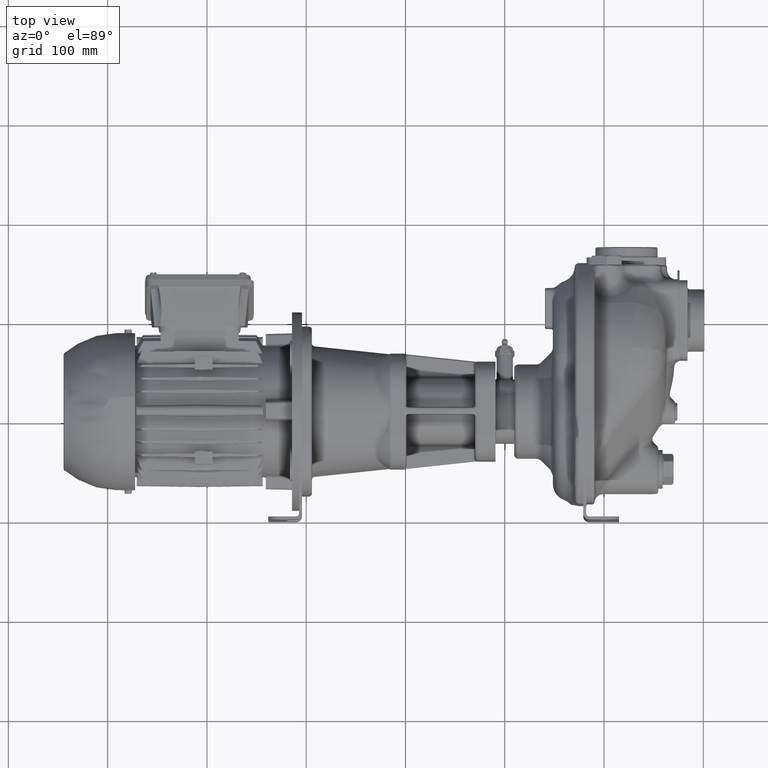
[diagram: clean part render]
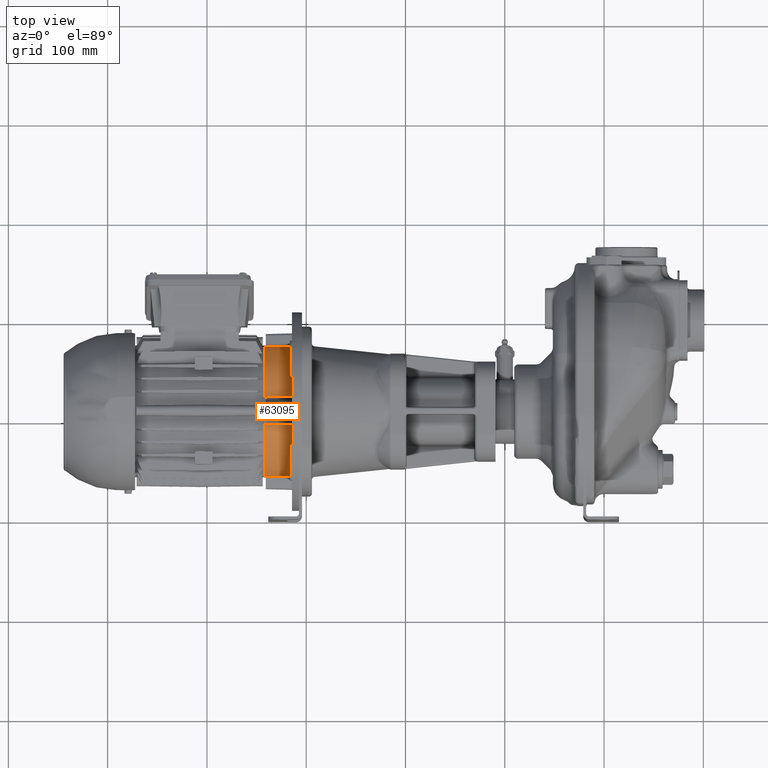
[diagram: same view with one face highlighted and labeled with its STEP entity id]
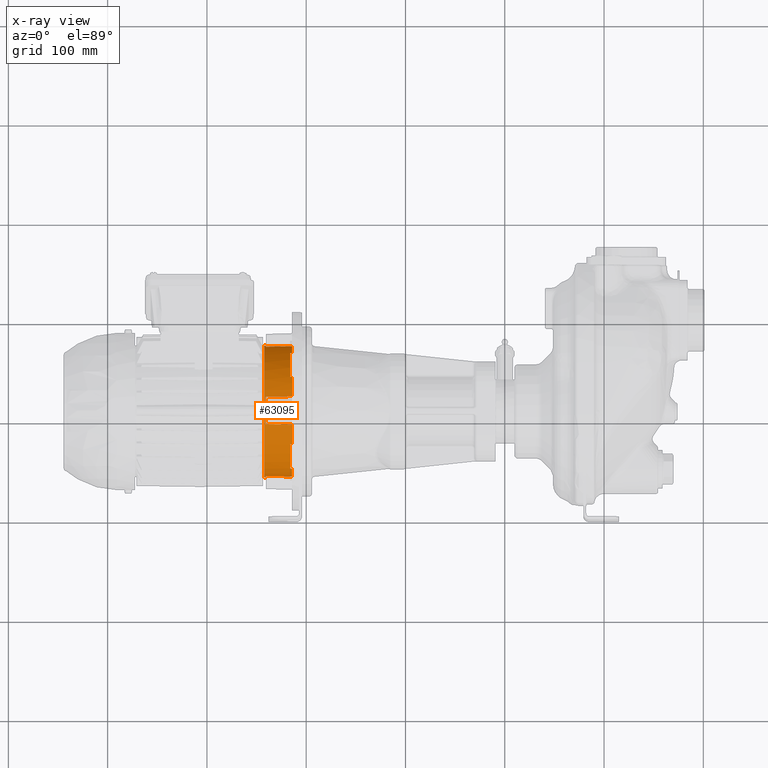
[diagram: x-ray of the same camera — body ghosted, the highlighted face saturated]
A machine part, top view. The second image highlights one B-rep face of the part: STEP entity #63095.
The next image is the same camera in x-ray: the body ghosted, the highlighted face saturated — about 0% of this face is hidden behind the body in this view.
In plain terms, the highlighted conical surface has half-angle 1.5 deg.
Its self-contained STEP definition (entity closure, byte-faithful):
#13512=CARTESIAN_POINT('',(-3.143E2,1.1E2,0.E0));
#13513=DIRECTION('',(1.E0,0.E0,0.E0));
#13514=DIRECTION('',(0.E0,-8.637521696594E-1,5.039168477127E-1));
#13515=AXIS2_PLACEMENT_3D('',#13512,#13513,#13514);
#13525=CARTESIAN_POINT('',(-3.143E2,1.1E2,0.E0));
#13526=DIRECTION('',(1.E0,0.E0,0.E0));
#13527=DIRECTION('',(0.E0,-2.120642378916E-1,9.772557285621E-1));
#13528=AXIS2_PLACEMENT_3D('',#13525,#13526,#13527);
#13542=CARTESIAN_POINT('',(-3.143E2,1.1E2,0.E0));
#13543=DIRECTION('',(1.E0,0.E0,0.E0));
#13544=DIRECTION('',(0.E0,5.039168477127E-1,8.637521696594E-1));
#13545=AXIS2_PLACEMENT_3D('',#13542,#13543,#13544);
#13560=CARTESIAN_POINT('',(-3.143E2,1.1E2,0.E0));
#13561=DIRECTION('',(1.E0,0.E0,0.E0));
#13562=DIRECTION('',(0.E0,9.772557285621E-1,2.120642378916E-1));
#13563=AXIS2_PLACEMENT_3D('',#13560,#13561,#13562);
#13671=DIRECTION('',(-9.996573249756E-1,2.617694830787E-2,0.E0));
#13672=VECTOR('',#13671,1.500514188741E0);
#13673=CARTESIAN_POINT('',(-3.408E2,4.346072111765E1,1.508847267228E-14));
#13674=LINE('',#13673,#13672);
#13731=CARTESIAN_POINT('',(-3.423E2,1.1E2,0.E0));
#13732=DIRECTION('',(1.E0,0.E0,0.E0));
#13733=DIRECTION('',(0.E0,1.E0,0.E0));
#13734=AXIS2_PLACEMENT_3D('',#13731,#13732,#13733);
#13761=DIRECTION('',(-9.996573249756E-1,-2.617694830788E-2,0.E0));
#13762=VECTOR('',#13761,1.500514188735E0);
#13763=CARTESIAN_POINT('',(-3.408E2,1.765392788824E2,-1.801897077903E-14));
#13764=LINE('',#13763,#13762);
#13765=CARTESIAN_POINT('',(-3.143000039996E2,1.757041858692E2,
1.425779117527E1));
#13766=CARTESIAN_POINT('',(-3.172649177616E2,1.756377066287E2,
1.419770258732E1));
#13767=CARTESIAN_POINT('',(-3.231810992922E2,1.755052234898E2,
1.407786147469E1));
#13768=CARTESIAN_POINT('',(-3.320139568616E2,1.753069737848E2,
1.389888579990E1));
#13769=CARTESIAN_POINT('',(-3.378758201771E2,1.751751041203E2,
1.378007584766E1));
#13770=CARTESIAN_POINT('',(-3.408000040005E2,1.751094055468E2,
1.372083722538E1));
#13772=CARTESIAN_POINT('',(-3.163E2,1.680426651948E2,3.382770268217E1));
#13773=CARTESIAN_POINT('',(-3.160779378837E2,1.680460145614E2,
3.383350395534E1));
#13774=CARTESIAN_POINT('',(-3.156337069152E2,1.680527146201E2,
3.384510879737E1));
#13775=CARTESIAN_POINT('',(-3.149670403707E2,1.680627686823E2,
3.386252294387E1));
#13776=CARTESIAN_POINT('',(-3.145223823817E2,1.680694740431E2,
3.387413696948E1));
#13777=CARTESIAN_POINT('',(-3.143E2,1.680728273863E2,3.387994513034E1));
#13779=CARTESIAN_POINT('',(-3.143E2,1.438799451303E2,5.807282738631E1));
#13780=CARTESIAN_POINT('',(-3.145223823817E2,1.438741369695E2,
5.806947404307E1));
#13781=CARTESIAN_POINT('',(-3.149670403708E2,1.438625229439E2,
5.806276868225E1));
#13782=CARTESIAN_POINT('',(-3.156337069152E2,1.438451087974E2,
5.805271462008E1));
#13783=CARTESIAN_POINT('',(-3.160779378837E2,1.438335039553E2,
5.804601456142E1));
#13784=CARTESIAN_POINT('',(-3.163E2,1.438277026822E2,5.804266519479E1));
#13786=CARTESIAN_POINT('',(-3.408000039757E2,1.237208372268E2,
6.510940555349E1));
#13787=CARTESIAN_POINT('',(-3.378758201246E2,1.237800758496E2,
6.517510412765E1));
#13788=CARTESIAN_POINT('',(-3.320139567051E2,1.238988858025E2,
6.530697378465E1));
#13789=CARTESIAN_POINT('',(-3.231810993357E2,1.240778614743E2,
6.550522349237E1));
#13790=CARTESIAN_POINT('',(-3.172649177660E2,1.241977025864E2,
6.563770662266E1));
#13791=CARTESIAN_POINT('',(-3.143000040238E2,1.242577911739E2,
6.570418586274E1));
#13793=CARTESIAN_POINT('',(-3.143000039996E2,9.574220882473E1,
6.570418586921E1));
#13794=CARTESIAN_POINT('',(-3.172649177620E2,9.580229741269E1,
6.563770662867E1));
#13795=CARTESIAN_POINT('',(-3.231810992932E2,9.592213852533E1,
6.550522348973E1));
#13796=CARTESIAN_POINT('',(-3.320139568625E2,9.610111420012E1,
6.530697378478E1));
#13797=CARTESIAN_POINT('',(-3.378758201775E2,9.621992415234E1,
6.517510412031E1));
#13798=CARTESIAN_POINT('',(-3.408000040005E2,9.627916277462E1,
6.510940554677E1));
#13800=CARTESIAN_POINT('',(-3.163E2,7.617229731782E1,5.804266519479E1));
#13801=CARTESIAN_POINT('',(-3.160779378837E2,7.616649604466E1,
5.804601456142E1));
#13802=CARTESIAN_POINT('',(-3.156337069152E2,7.615489120263E1,
5.805271462009E1));
#13803=CARTESIAN_POINT('',(-3.149670403707E2,7.613747705613E1,
5.806276868225E1));
#13804=CARTESIAN_POINT('',(-3.145223823817E2,7.612586303052E1,
5.806947404307E1));
#13805=CARTESIAN_POINT('',(-3.143E2,7.612005486966E1,5.807282738631E1));
#13807=CARTESIAN_POINT('',(-3.143E2,5.192717261369E1,3.387994513034E1));
#13808=CARTESIAN_POINT('',(-3.145223823817E2,5.193052595693E1,
3.387413696948E1));
#13809=CARTESIAN_POINT('',(-3.149670403708E2,5.193723131775E1,
3.386252294387E1));
#13810=CARTESIAN_POINT('',(-3.156337069152E2,5.194728537991E1,
3.384510879737E1));
#13811=CARTESIAN_POINT('',(-3.160779378837E2,5.195398543858E1,
3.383350395534E1));
#13812=CARTESIAN_POINT('',(-3.163E2,5.195733480521E1,3.382770268217E1));
#13814=CARTESIAN_POINT('',(-3.408000039773E2,4.489059447568E1,
1.372083722061E1));
#13815=CARTESIAN_POINT('',(-3.378758201255E2,4.482489590150E1,
1.378007584347E1));
#13816=CARTESIAN_POINT('',(-3.320139567093E2,4.469302620556E1,
1.389888580451E1));
#13817=CARTESIAN_POINT('',(-3.231810993344E2,4.449477649852E1,
1.407786147636E1));
#13818=CARTESIAN_POINT('',(-3.172649177654E2,4.436229340513E1,
1.419770258033E1));
#13819=CARTESIAN_POINT('',(-3.143000040238E2,4.429581416506E1,
1.425779116787E1));
#13825=CARTESIAN_POINT('',(-3.408E2,1.1E2,0.E0));
#13826=DIRECTION('',(1.E0,0.E0,0.E0));
#13827=DIRECTION('',(0.E0,1.E0,0.E0));
#13828=AXIS2_PLACEMENT_3D('',#13825,#13826,#13827);
#14031=CARTESIAN_POINT('',(-3.163E2,1.1E2,0.E0));
#14032=DIRECTION('',(1.E0,0.E0,0.E0));
#14033=DIRECTION('',(0.E0,8.639765506433E-1,5.035320445994E-1));
#14034=AXIS2_PLACEMENT_3D('',#14031,#14032,#14033);
#14139=CARTESIAN_POINT('',(-3.408E2,1.1E2,0.E0));
#14140=DIRECTION('',(1.E0,0.E0,0.E0));
#14141=DIRECTION('',(0.E0,2.062061055991E-1,9.785085804497E-1));
#14142=AXIS2_PLACEMENT_3D('',#14139,#14140,#14141);
#14300=CARTESIAN_POINT('',(-3.163E2,1.1E2,0.E0));
#14301=DIRECTION('',(1.E0,0.E0,0.E0));
#14302=DIRECTION('',(0.E0,-5.035320445994E-1,8.639765506433E-1));
#14303=AXIS2_PLACEMENT_3D('',#14300,#14301,#14302);
#14400=CARTESIAN_POINT('',(-3.408E2,1.1E2,0.E0));
#14401=DIRECTION('',(1.E0,0.E0,0.E0));
#14402=DIRECTION('',(0.E0,-9.785085804497E-1,2.062061055991E-1));
#14403=AXIS2_PLACEMENT_3D('',#14400,#14401,#14402);
#14535=CARTESIAN_POINT('',(-3.423E2,1.1E2,0.E0));
#14536=DIRECTION('',(-1.E0,0.E0,0.E0));
#14537=DIRECTION('',(0.E0,-1.E0,0.E0));
#14538=AXIS2_PLACEMENT_3D('',#14535,#14536,#14537);
#41054=CARTESIAN_POINT('',(-3.163E2,1.438277026822E2,5.804266519479E1));
#41055=VERTEX_POINT('',#41054);
#41087=VERTEX_POINT('',#13814);
#41088=VERTEX_POINT('',#13819);
#41089=CARTESIAN_POINT('',(-3.408E2,4.346072111765E1,0.E0));
#41090=VERTEX_POINT('',#41089);
#41091=CARTESIAN_POINT('',(-3.408E2,1.237208055677E2,6.510925532332E1));
#41092=CARTESIAN_POINT('',(-3.408E2,9.627919443230E1,6.510925532332E1));
#41093=VERTEX_POINT('',#41091);
#41094=VERTEX_POINT('',#41092);
#41095=VERTEX_POINT('',#13793);
#41096=VERTEX_POINT('',#13800);
#41097=VERTEX_POINT('',#13805);
#41098=CARTESIAN_POINT('',(-3.163E2,5.195733480521E1,3.382770268217E1));
#41099=VERTEX_POINT('',#41098);
#41100=VERTEX_POINT('',#13807);
#41101=VERTEX_POINT('',#13772);
#41102=VERTEX_POINT('',#13777);
#41103=VERTEX_POINT('',#13779);
#41104=VERTEX_POINT('',#13791);
#41105=CARTESIAN_POINT('',(-3.408E2,1.765392788824E2,-1.530273298329E-14));
#41106=CARTESIAN_POINT('',(-3.408E2,1.751092553233E2,1.372080556770E1));
#41107=VERTEX_POINT('',#41105);
#41108=VERTEX_POINT('',#41106);
#41109=VERTEX_POINT('',#13765);
#41237=CARTESIAN_POINT('',(-3.423E2,4.35E1,1.276763564036E-14));
#41238=VERTEX_POINT('',#41237);
#41322=CARTESIAN_POINT('',(-3.423E2,1.765E2,-1.421085471520E-14));
#41323=CARTESIAN_POINT('',(-3.423E2,1.589297745015E2,4.503473289842E1));
#41324=VERTEX_POINT('',#41322);
#41325=VERTEX_POINT('',#41323);
#63053=CARTESIAN_POINT('',(-3.283E2,1.1E2,0.E0));
#63054=DIRECTION('',(1.E0,0.E0,0.E0));
#63055=DIRECTION('',(0.E0,-1.E0,0.E0));
#63056=AXIS2_PLACEMENT_3D('',#63053,#63054,#63055);
#63057=CONICAL_SURFACE('',#63056,6.686660290197E1,1.5E0);
#63058=ORIENTED_EDGE('',*,*,#63039,.F.);
#63059=ORIENTED_EDGE('',*,*,#63029,.F.);
#63061=ORIENTED_EDGE('',*,*,#63060,.T.);
#63063=ORIENTED_EDGE('',*,*,#63062,.F.);
#63064=ORIENTED_EDGE('',*,*,#62927,.T.);
#63066=ORIENTED_EDGE('',*,*,#63065,.F.);
#63068=ORIENTED_EDGE('',*,*,#63067,.T.);
#63070=ORIENTED_EDGE('',*,*,#63069,.F.);
#63071=ORIENTED_EDGE('',*,*,#62919,.T.);
#63073=ORIENTED_EDGE('',*,*,#63072,.F.);
#63075=ORIENTED_EDGE('',*,*,#63074,.T.);
#63077=ORIENTED_EDGE('',*,*,#63076,.F.);
#63078=ORIENTED_EDGE('',*,*,#62903,.T.);
#63080=ORIENTED_EDGE('',*,*,#63079,.F.);
#63082=ORIENTED_EDGE('',*,*,#63081,.T.);
#63084=ORIENTED_EDGE('',*,*,#63083,.F.);
#63085=ORIENTED_EDGE('',*,*,#62895,.T.);
#63087=ORIENTED_EDGE('',*,*,#63086,.F.);
#63089=ORIENTED_EDGE('',*,*,#63088,.T.);
#63090=ORIENTED_EDGE('',*,*,#62998,.T.);
#63092=ORIENTED_EDGE('',*,*,#63091,.T.);
#63093=EDGE_LOOP('',(#63058,#63059,#63061,#63063,#63064,#63066,#63068,#63070,
#63071,#63073,#63075,#63077,#63078,#63080,#63082,#63084,#63085,#63087,#63089,
#63090,#63092));
#63094=FACE_OUTER_BOUND('',#63093,.F.);
#63095=ADVANCED_FACE('',(#63094),#63057,.T.);
#13516=CIRCLE('',#13515,6.723320580394E1);
#13529=CIRCLE('',#13528,6.723320580394E1);
#13546=CIRCLE('',#13545,6.723320580394E1);
#13564=CIRCLE('',#13563,6.723320580394E1);
#13735=CIRCLE('',#13734,6.65E1);
#13771=B_SPLINE_CURVE_WITH_KNOTS('',3,(#13765,#13766,#13767,#13768,#13769,
#13770),.UNSPECIFIED.,.F.,.F.,(4,1,1,4),(0.E0,3.333333333333E-1,
6.666666666667E-1,1.E0),.UNSPECIFIED.);
#13778=B_SPLINE_CURVE_WITH_KNOTS('',3,(#13772,#13773,#13774,#13775,#13776,
#13777),.UNSPECIFIED.,.F.,.F.,(4,1,1,4),(0.E0,3.333333333333E-1,
6.666666666667E-1,1.E0),.UNSPECIFIED.);
#13785=B_SPLINE_CURVE_WITH_KNOTS('',3,(#13779,#13780,#13781,#13782,#13783,
#13784),.UNSPECIFIED.,.F.,.F.,(4,1,1,4),(0.E0,3.333333333333E-1,
6.666666666667E-1,1.E0),.UNSPECIFIED.);
#13792=B_SPLINE_CURVE_WITH_KNOTS('',3,(#13786,#13787,#13788,#13789,#13790,
#13791),.UNSPECIFIED.,.F.,.F.,(4,1,1,4),(0.E0,3.333333333333E-1,
6.666666666667E-1,1.E0),.UNSPECIFIED.);
#13799=B_SPLINE_CURVE_WITH_KNOTS('',3,(#13793,#13794,#13795,#13796,#13797,
#13798),.UNSPECIFIED.,.F.,.F.,(4,1,1,4),(0.E0,3.333333333333E-1,
6.666666666667E-1,1.E0),.UNSPECIFIED.);
#13806=B_SPLINE_CURVE_WITH_KNOTS('',3,(#13800,#13801,#13802,#13803,#13804,
#13805),.UNSPECIFIED.,.F.,.F.,(4,1,1,4),(0.E0,3.333333333333E-1,
6.666666666667E-1,1.E0),.UNSPECIFIED.);
#13813=B_SPLINE_CURVE_WITH_KNOTS('',3,(#13807,#13808,#13809,#13810,#13811,
#13812),.UNSPECIFIED.,.F.,.F.,(4,1,1,4),(0.E0,3.333333333333E-1,
6.666666666667E-1,1.E0),.UNSPECIFIED.);
#13820=B_SPLINE_CURVE_WITH_KNOTS('',3,(#13814,#13815,#13816,#13817,#13818,
#13819),.UNSPECIFIED.,.F.,.F.,(4,1,1,4),(0.E0,3.333333333333E-1,
6.666666666667E-1,1.E0),.UNSPECIFIED.);
#13829=CIRCLE('',#13828,6.653927888235E1);
#14035=CIRCLE('',#14034,6.718083396080E1);
#14143=CIRCLE('',#14142,6.653927888235E1);
#14304=CIRCLE('',#14303,6.718083396080E1);
#14404=CIRCLE('',#14403,6.653927888235E1);
#14539=CIRCLE('',#14538,6.65E1);
#62895=EDGE_CURVE('',#41100,#41088,#13516,.T.);
#62903=EDGE_CURVE('',#41095,#41097,#13529,.T.);
#62919=EDGE_CURVE('',#41103,#41104,#13546,.T.);
#62927=EDGE_CURVE('',#41109,#41102,#13564,.T.);
#62998=EDGE_CURVE('',#41090,#41238,#13674,.T.);
#63029=EDGE_CURVE('',#41107,#41324,#13764,.T.);
#63039=EDGE_CURVE('',#41324,#41325,#13735,.T.);
#63060=EDGE_CURVE('',#41107,#41108,#13829,.T.);
#63062=EDGE_CURVE('',#41109,#41108,#13771,.T.);
#63065=EDGE_CURVE('',#41101,#41102,#13778,.T.);
#63067=EDGE_CURVE('',#41101,#41055,#14035,.T.);
#63069=EDGE_CURVE('',#41103,#41055,#13785,.T.);
#63072=EDGE_CURVE('',#41093,#41104,#13792,.T.);
#63074=EDGE_CURVE('',#41093,#41094,#14143,.T.);
#63076=EDGE_CURVE('',#41095,#41094,#13799,.T.);
#63079=EDGE_CURVE('',#41096,#41097,#13806,.T.);
#63081=EDGE_CURVE('',#41096,#41099,#14304,.T.);
#63083=EDGE_CURVE('',#41100,#41099,#13813,.T.);
#63086=EDGE_CURVE('',#41087,#41088,#13820,.T.);
#63088=EDGE_CURVE('',#41087,#41090,#14404,.T.);
#63091=EDGE_CURVE('',#41238,#41325,#14539,.T.);